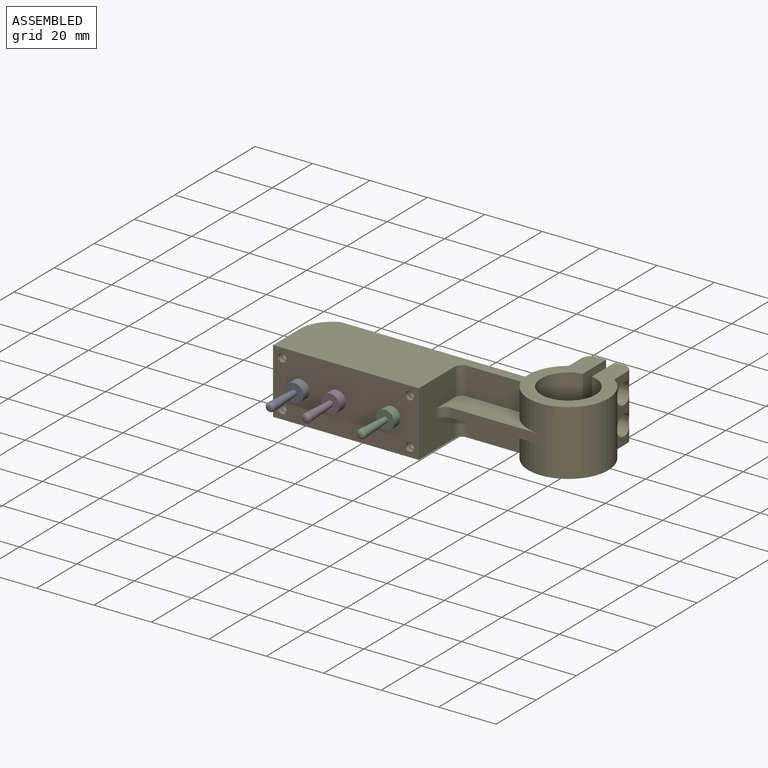
[diagram: assembled view]
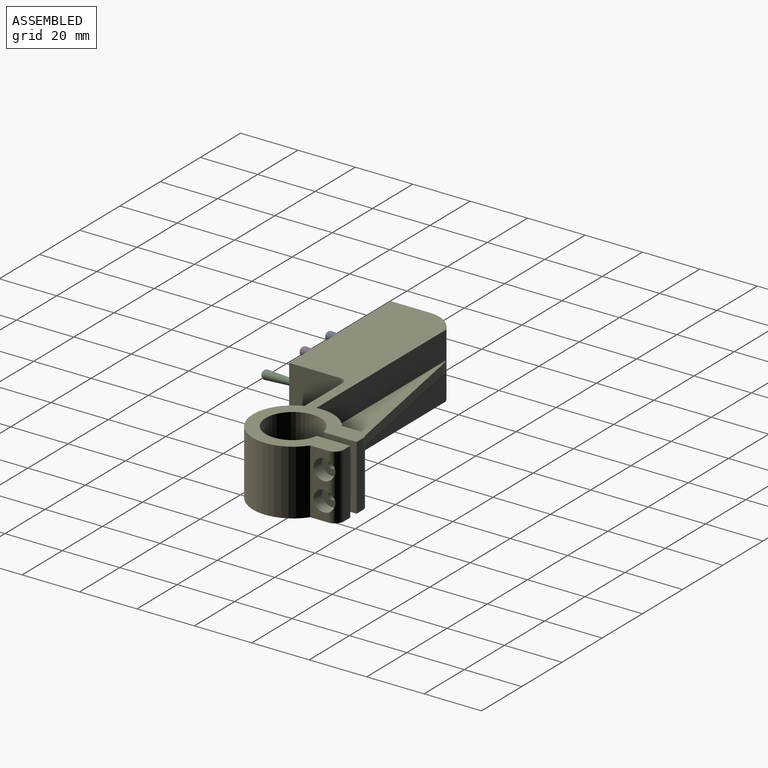
[diagram: assembled view, second angle]
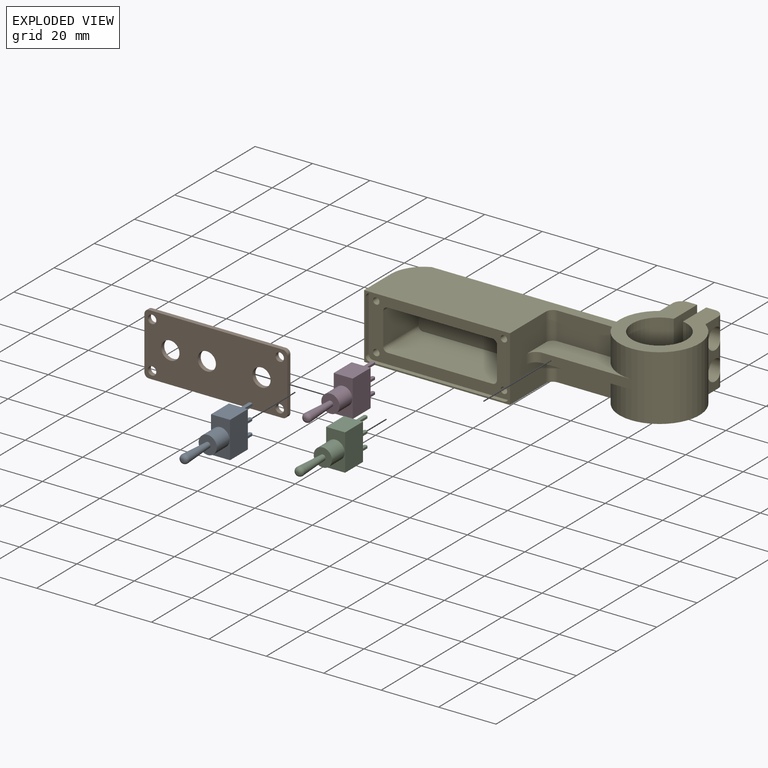
[diagram: exploded view]
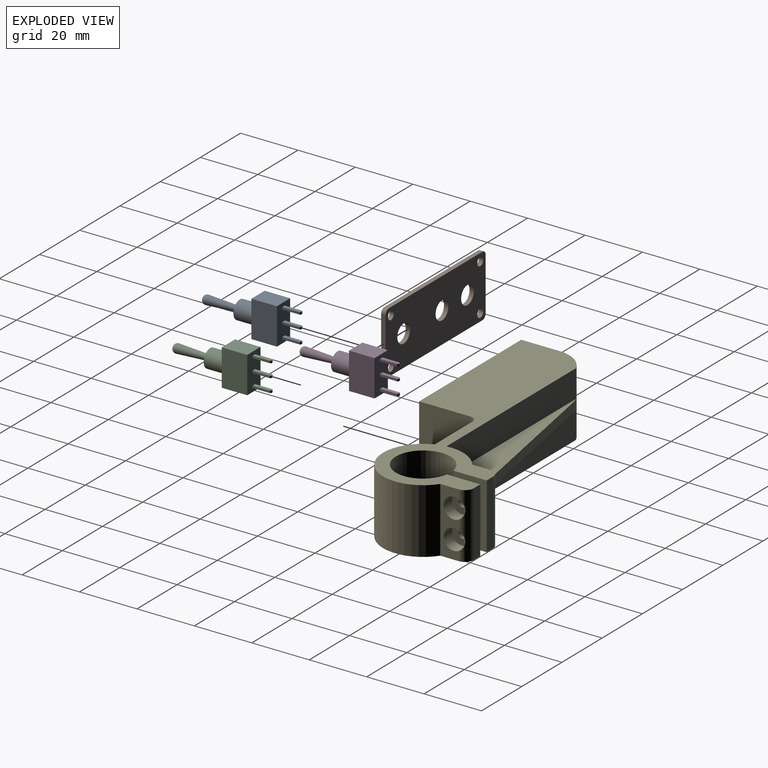
[diagram: exploded view, second angle]
ASSEMBLY  parts=5 mates=4
PART A: 32 faces, bbox 6.6x34.3x12.7 mm
  f0: plane 8.89x6.6mm, normal (0,0,1), area 58.7mm2, adj f1,f3,f4,f5
  f1: plane 12.7x8.89mm, normal (-1,0,0), area 112.9mm2, adj f0,f2,f4,f5
  f2: plane 8.89x6.6mm, normal (0,0,-1), area 58.7mm2, adj f1,f3,f4,f5
  f3: plane 12.7x8.89mm, normal (1,0,0), area 112.9mm2, adj f0,f2,f4,f5
  f4: plane 12.7x6.6mm, normal (0,1,0), area 81mm2, adj f0,f1,f2,f3,f11,f12,f13,f14
  f5: plane 12.7x6.6mm, normal (0,-1,0), area 52.2mm2, adj f0,f1,f2,f3,f6
  f6: cylinder r=3.17mm len=6.35mm, axis (0,1,0), area 126.7mm2, adj f5,f7
  f7: plane 6.35x6.35mm, normal (0,-1,0), area 28.8mm2, adj f6,f8
  f8: cone r=0.95mm half-angle=3deg, axis (0,-1,0), area 89.4mm2, adj f7,f10
  f9: plane 0.56x0.56mm, normal (0,-1,0), area 0.2mm2, adj f10
  f10: torus R=0.28mm, axis (0,-1,0), area 14.3mm2, adj f8,f9
  f11: plane 6.35x1.27mm, normal (0,0,1), area 8mm2, adj f4,f12,f14,f15,f30,f31
  f12: plane 5.84x0.76mm, normal (1,0,0), area 4.5mm2, adj f4,f11,f13,f30
  f13: plane 6.35x1.27mm, normal (0,0,-1), area 8mm2, adj f4,f12,f14,f15,f30,f31
  f14: plane 5.84x0.76mm, normal (-1,0,0), area 4.5mm2, adj f4,f11,f13,f31
  f15: plane 0.76x0.25mm, normal (0,1,0), area 0.2mm2, adj f11,f13,f30,f31
  f16: plane 6.35x1.27mm, normal (0,0,1), area 8mm2, adj f4,f17,f19,f20,f28,f29
  f17: plane 5.84x0.76mm, normal (1,0,0), area 4.5mm2, adj f4,f16,f18,f28
  f18: plane 6.35x1.27mm, normal (0,0,-1), area 8mm2, adj f4,f17,f19,f20,f28,f29
  f19: plane 5.84x0.76mm, normal (-1,0,0), area 4.5mm2, adj f4,f16,f18,f29
  f20: plane 0.76x0.25mm, normal (0,1,0), area 0.2mm2, adj f16,f18,f28,f29
  f21: plane 6.35x1.27mm, normal (0,0,1), area 8mm2, adj f4,f22,f24,f25,f26,f27
  f22: plane 5.84x0.76mm, normal (1,0,0), area 4.5mm2, adj f4,f21,f23,f26
  f23: plane 6.35x1.27mm, normal (0,0,-1), area 8mm2, adj f4,f22,f24,f25,f26,f27
  f24: plane 5.84x0.76mm, normal (-1,0,0), area 4.5mm2, adj f4,f21,f23,f27
  f25: plane 0.76x0.25mm, normal (0,1,0), area 0.2mm2, adj f21,f23,f26,f27
  f26: cylinder r=0.51mm len=0.76mm, axis (0,0,1), area 0.6mm2, adj f21,f22,f23,f25
  f27: cylinder r=0.51mm len=0.76mm, axis (0,0,-1), area 0.6mm2, adj f21,f23,f24,f25
  f28: cylinder r=0.51mm len=0.76mm, axis (0,0,1), area 0.6mm2, adj f16,f17,f18,f20
  f29: cylinder r=0.51mm len=0.76mm, axis (0,0,-1), area 0.6mm2, adj f16,f18,f19,f20
  f30: cylinder r=0.51mm len=0.76mm, axis (0,0,1), area 0.6mm2, adj f11,f12,f13,f15
  f31: cylinder r=0.51mm len=0.76mm, axis (0,0,-1), area 0.6mm2, adj f11,f13,f14,f15
PART B: 17 faces, bbox 49.8x1.5x21.6 mm
  f0: plane 46.61x1.52mm, normal (0,0,1), area 71mm2, adj f1,f14,f15,f16
  f1: cylinder r=1.59mm len=1.59mm, axis (0,1,0), area 3.8mm2, adj f0,f2,f15,f16
  f2: plane 18.39x1.52mm, normal (-1,0,0), area 28mm2, adj f1,f3,f15,f16
  f3: cylinder r=1.59mm len=1.59mm, axis (0,1,0), area 3.8mm2, adj f2,f4,f15,f16
  f4: plane 46.61x1.52mm, normal (0,0,-1), area 71mm2, adj f3,f5,f15,f16
  f5: cylinder r=1.59mm len=1.59mm, axis (0,1,0), area 3.8mm2, adj f4,f6,f15,f16
  f6: plane 18.39x1.52mm, normal (1,0,0), area 28mm2, adj f5,f14,f15,f16
  f7: cylinder r=3.17mm len=6.35mm, axis (0,1,0), area 30.4mm2, adj f15,f16
  f8: cylinder r=3.17mm len=6.35mm, axis (0,1,0), area 30.4mm2, adj f15,f16
  f9: cylinder r=3.17mm len=6.35mm, axis (0,1,0), area 30.4mm2, adj f15,f16
  f10: cylinder r=1.47mm len=2.95mm, axis (0,1,0), area 14.1mm2, adj f15,f16
  f11: cylinder r=1.47mm len=2.95mm, axis (0,1,0), area 14.1mm2, adj f15,f16
  f12: cylinder r=1.47mm len=2.95mm, axis (0,1,0), area 14.1mm2, adj f15,f16
  f13: cylinder r=1.47mm len=2.95mm, axis (0,1,0), area 14.1mm2, adj f15,f16
  f14: cylinder r=1.59mm len=1.59mm, axis (0,1,0), area 3.8mm2, adj f0,f6,f15,f16
  f15: plane 49.78x21.56mm, normal (0,-1,0), area 949.1mm2, adj f0,f1,f2,f3,f4,f5,f6,f7
  f16: plane 49.78x21.56mm, normal (0,1,0), area 949.1mm2, adj f0,f1,f2,f3,f4,f5,f6,f7
PART C: same geometry as A
PART D: same geometry as A
PART E: 65 faces, bbox 99.1x46.4x22.6 mm
  f0: plane 99.06x46.42mm, normal (0,0,-1), area 1675mm2, adj f5,f6,f7,f8,f9,f10,f11,f12
  f1: plane 67.77x12.32mm, normal (-0.18,0.98,0), area 225.7mm2, adj f14,f15,f48,f54
  f2: cylinder r=3.17mm len=3.28mm, axis (0,0,-1), area 16.3mm2, adj f3,f17,f47,f53
  f3: plane 31.12x3.28mm, normal (0,-1,0), area 102mm2, adj f2,f18,f47,f53
  f4: plane 99.06x46.42mm, normal (0,0,1), area 1675mm2, adj f5,f6,f7,f8,f9,f10,f11,f12
  f5: plane 22.58x6.35mm, normal (1,0,0), area 81.4mm2, adj f0,f4,f6,f18,f39,f42
  f6: cylinder r=3.17mm len=22.58mm, axis (0,0,-1), area 93.4mm2, adj f0,f4,f5,f8,f39,f42
  f7: plane 50.8x22.58mm, normal (0,-1,0), area 75.7mm2, adj f0,f4,f16,f17,f19,f20,f21,f22
  f8: plane 22.58x3.18mm, normal (0,1,0), area 71.7mm2, adj f0,f4,f6,f9
  f9: plane 22.58x11.63mm, normal (-1,0,0), area 251.1mm2, adj f0,f4,f8,f10,f37,f43
  f10: cylinder r=9.53mm len=22.58mm, axis (0,0,-1), area 1279.4mm2, adj f0,f4,f9,f11
  f11: plane 22.58x11.63mm, normal (1,0,0), area 251.1mm2, adj f0,f4,f10,f12,f40,f41
  f12: plane 22.58x3.18mm, normal (0,1,0), area 71.7mm2, adj f0,f4,f11,f13
  f13: cylinder r=3.17mm len=22.58mm, axis (0,0,-1), area 112.6mm2, adj f0,f4,f12,f14
  f14: plane 22.58x6.35mm, normal (-1,0,0), area 131.9mm2, adj f0,f1,f4,f13,f40,f41,f50,f56
  f15: cylinder r=11.43mm len=22.58mm, axis (0,0,-1), area 308mm2, adj f0,f1,f4,f16,f48,f49,f54,f55
  f16: plane 22.58x13.34mm, normal (-1,0,0), area 301.1mm2, adj f0,f4,f7,f15
  f17: plane 22.58x17.94mm, normal (1,0,0), area 373.3mm2, adj f0,f2,f4,f7,f46,f47,f52,f53
  f18: cylinder r=13.97mm len=26.98mm, axis (0,0,-1), area 1123.6mm2, adj f0,f3,f4,f5,f45,f47,f51,f53
  f19: plane 46.61x1.52mm, normal (0,0,-1), area 71mm2, adj f7,f23,f57,f60
  f20: plane 18.39x1.52mm, normal (1,0,0), area 28mm2, adj f7,f23,f57,f58
  f21: plane 46.61x1.52mm, normal (0,0,1), area 71mm2, adj f7,f23,f58,f59
  f22: plane 18.39x1.52mm, normal (-1,0,0), area 28mm2, adj f7,f23,f59,f60
  f23: plane 49.78x21.56mm, normal (0,-1,0), area 493.9mm2, adj f19,f20,f21,f22,f25,f26,f27,f28
  f24: plane 39.62x14.22mm, normal (0,-1,0), area 561.4mm2, adj f25,f26,f27,f28,f61,f62,f63,f64
  f25: plane 17.53x11.05mm, normal (-1,0,0), area 193.6mm2, adj f23,f24,f63,f64
  f26: plane 36.45x17.53mm, normal (0,0,1), area 638.8mm2, adj f23,f24,f62,f63
  f27: plane 17.53x11.05mm, normal (1,0,0), area 193.6mm2, adj f23,f24,f61,f62
  f28: plane 36.45x17.53mm, normal (0,0,-1), area 638.8mm2, adj f23,f24,f61,f64
  f29: cone r=0mm half-angle=59deg, axis (0,-1,0), area 4.7mm2, adj f30
  f30: cylinder r=1.13mm len=10.03mm, axis (0,-1,0), area 71.3mm2, adj f23,f29
  f31: cone r=0mm half-angle=59deg, axis (0,-1,0), area 4.7mm2, adj f32
  f32: cylinder r=1.13mm len=10.03mm, axis (0,-1,0), area 71.3mm2, adj f23,f31
  f33: cone r=0mm half-angle=59deg, axis (0,-1,0), area 4.7mm2, adj f34
  f34: cylinder r=1.13mm len=10.03mm, axis (0,-1,0), area 71.3mm2, adj f23,f33
  f35: cone r=0mm half-angle=59deg, axis (0,-1,0), area 4.7mm2, adj f36
  f36: cylinder r=1.13mm len=10.03mm, axis (0,-1,0), area 71.3mm2, adj f23,f35
  f37: cylinder r=1.35mm len=2.71mm, axis (1,0,0), area 18.3mm2, adj f9,f38
  f38: plane 7.14x7.14mm, normal (1,0,0), area 34.3mm2, adj f37,f39
  f39: cylinder r=3.57mm len=7.14mm, axis (1,0,0), area 91.5mm2, adj f5,f6,f38
  f40: cylinder r=1.35mm len=6.35mm, axis (1,0,0), area 54mm2, adj f11,f14
  f41: cylinder r=1.35mm len=6.35mm, axis (1,0,0), area 54mm2, adj f11,f14
  f42: cylinder r=3.57mm len=7.14mm, axis (1,0,0), area 91.5mm2, adj f5,f6,f44
  f43: cylinder r=1.35mm len=2.71mm, axis (1,0,0), area 18.3mm2, adj f9,f44
  f44: plane 7.14x7.14mm, normal (1,0,0), area 34.3mm2, adj f42,f43
  f45: plane 18.9x9.65mm, normal (0,-1,0), area 182.4mm2, adj f4,f18,f46,f47
  f46: cylinder r=2.38mm len=9.65mm, axis (0,0,1), area 36.1mm2, adj f4,f17,f45,f47
  f47: plane 34.29x12.07mm, normal (0,0,1), area 221.9mm2, adj f2,f3,f17,f18,f45,f46
  f48: plane 70.29x13.08mm, normal (0,0,1), area 412.2mm2, adj f1,f15,f49,f50
  f49: plane 64.35x9.65mm, normal (0,1,0), area 621.1mm2, adj f4,f15,f48,f50
  f50: cylinder r=13.97mm len=13.08mm, axis (0,0,1), area 145.7mm2, adj f4,f14,f48,f49
  f51: plane 18.9x9.65mm, normal (0,-1,0), area 182.4mm2, adj f0,f18,f52,f53
  f52: cylinder r=2.38mm len=9.65mm, axis (0,0,1), area 36.1mm2, adj f0,f17,f51,f53
  f53: plane 34.29x12.07mm, normal (0,0,-1), area 221.9mm2, adj f2,f3,f17,f18,f51,f52
  f54: plane 70.29x13.08mm, normal (0,0,-1), area 412.2mm2, adj f1,f15,f55,f56
  f55: plane 64.35x9.65mm, normal (0,1,0), area 621.1mm2, adj f0,f15,f54,f56
  f56: cylinder r=13.97mm len=13.08mm, axis (0,0,1), area 145.7mm2, adj f0,f14,f54,f55
  f57: cylinder r=1.59mm len=1.59mm, axis (0,-1,0), area 3.8mm2, adj f7,f19,f20,f23
  f58: cylinder r=1.59mm len=1.59mm, axis (0,1,0), area 3.8mm2, adj f7,f20,f21,f23
  f59: cylinder r=1.59mm len=1.59mm, axis (0,-1,0), area 3.8mm2, adj f7,f21,f22,f23
  f60: cylinder r=1.59mm len=1.59mm, axis (0,1,0), area 3.8mm2, adj f7,f19,f22,f23
  f61: cylinder r=1.59mm len=17.53mm, axis (0,-1,0), area 43.7mm2, adj f23,f24,f27,f28
  f62: cylinder r=1.59mm len=17.53mm, axis (0,1,0), area 43.7mm2, adj f23,f24,f26,f27
  f63: cylinder r=1.59mm len=17.53mm, axis (0,-1,0), area 43.7mm2, adj f23,f24,f25,f26
  f64: cylinder r=1.59mm len=17.53mm, axis (0,1,0), area 43.7mm2, adj f23,f24,f25,f28
PLACE A t=(0.62,-6.53,-27.69)mm
PLACE B t=(16.49,-8.18,-27.69)mm
PLACE C t=(32.37,-6.53,-27.69)mm
PLACE D t=(13.32,-6.53,-27.69)mm
PLACE E t=(76.18,15.7,-38.98)mm
MATE fastened A.f6 <-> B.f7  axis (0,-1,0) through (0.62,-12.88,-27.69)mm
MATE fastened C.f8 <-> B.f9  axis (0,-1,0) through (32.37,-12.88,-27.69)mm
MATE fastened D.f8 <-> B.f8  axis (0,-1,0) through (13.32,-12.88,-27.69)mm
MATE fastened E.f31 <-> B.f13  axis (0,-1,0) through (-5.73,-8.18,-35.81)mm
